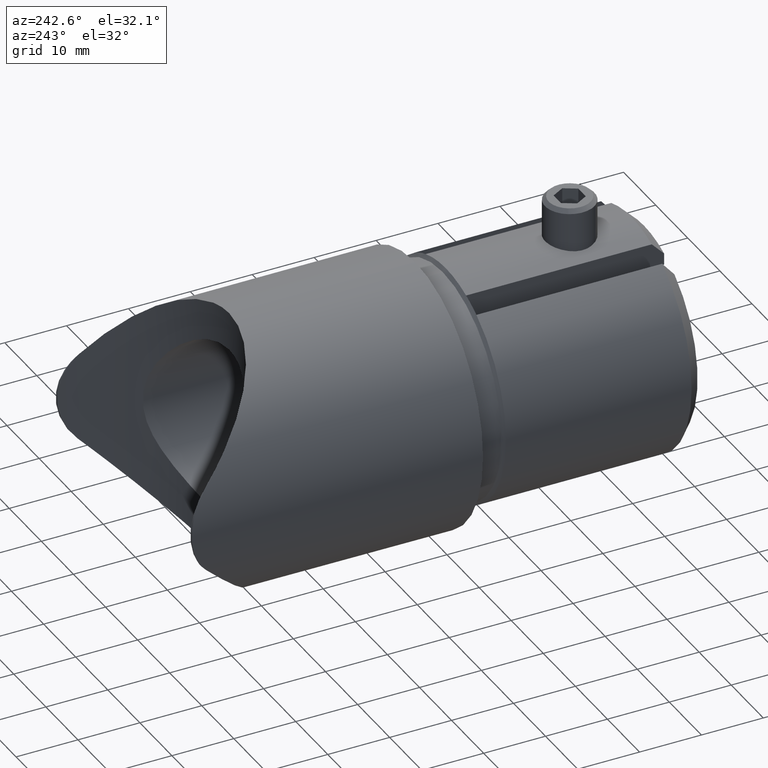
[diagram: clean part render]
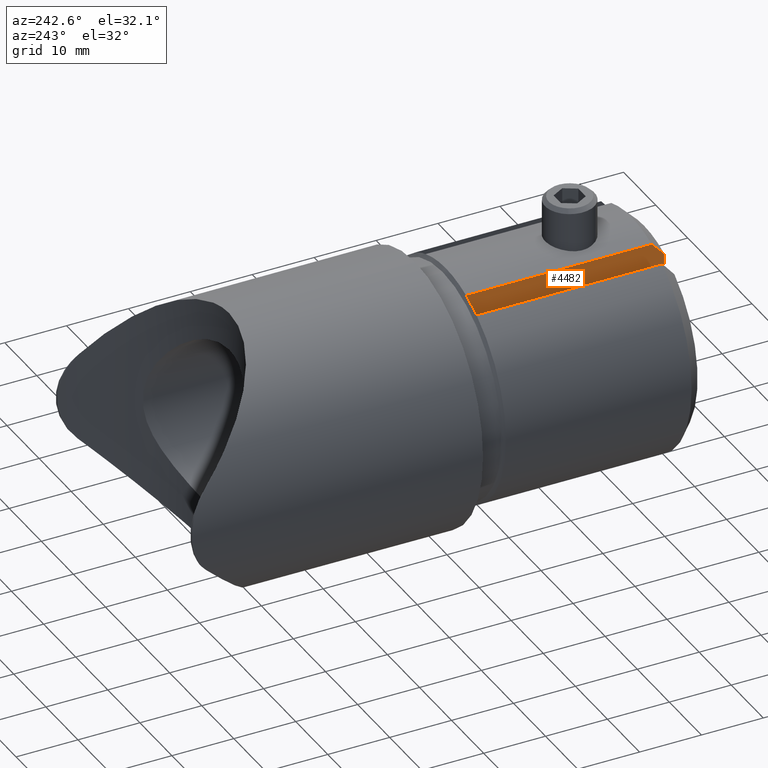
[diagram: same view with one face highlighted and labeled with its STEP entity id]
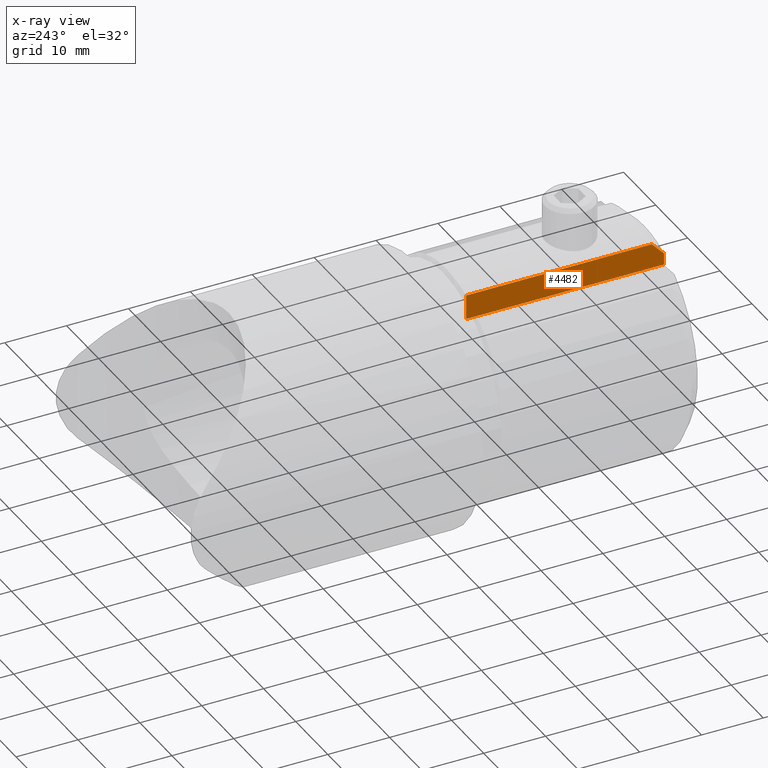
[diagram: x-ray of the same camera — body ghosted, the highlighted face saturated]
A machine part, auxiliary view. The second image highlights one B-rep face of the part: STEP entity #4482.
The next image is the same camera in x-ray: the body ghosted, the highlighted face saturated — about 0% of this face is hidden behind the body in this view.
In plain terms, the highlighted planar face has unit normal (1, -0, 0).
Its self-contained STEP definition (entity closure, byte-faithful):
#296 = CARTESIAN_POINT ( 'NONE',  ( -6.299999999999998900, -4.999999999999992000, -21.19999999999999900 ) ) ;
#389 = ORIENTED_EDGE ( 'NONE', *, *, #5753, .F. ) ;
#1171 = VERTEX_POINT ( 'NONE', #4144 ) ;
#1446 = VECTOR ( 'NONE', #13049, 1000.000000000000000 ) ;
#2234 = EDGE_CURVE ( 'NONE', #7258, #1171, #7853, .T. ) ;
#2315 = FACE_OUTER_BOUND ( 'NONE', #11234, .T. ) ;
#2327 = DIRECTION ( 'NONE',  ( -0.0000000000000000000, -0.0000000000000000000, 1.000000000000000000 ) ) ;
#2405 = VERTEX_POINT ( 'NONE', #8102 ) ;
#2535 = PLANE ( 'NONE',  #5209 ) ;
#2886 = B_SPLINE_CURVE_WITH_KNOTS ( 'NONE', 3,
 ( #3089, #5307, #10576, #4179 ),
 .UNSPECIFIED., .F., .F.,
 ( 4, 4 ),
 ( 0.07284254844285362200, 0.07575993842085485000 ),
 .UNSPECIFIED. ) ;
#3089 = CARTESIAN_POINT ( 'NONE',  ( -6.299999999999999800, -37.00000000000000000, 15.46609194334498500 ) ) ;
#3101 = LINE ( 'NONE', #8416, #12829 ) ;
#3249 = EDGE_CURVE ( 'NONE', #12965, #2405, #12727, .T. ) ;
#3345 = CARTESIAN_POINT ( 'NONE',  ( -6.299999999999999800, -37.00000000000000000, 17.60681686165900900 ) ) ;
#3842 = VECTOR ( 'NONE', #2327, 1000.000000000000000 ) ;
#4118 = CARTESIAN_POINT ( 'NONE',  ( -6.299999999999998900, -4.999999999999992000, 13.61286156544611200 ) ) ;
#4144 = CARTESIAN_POINT ( 'NONE',  ( -6.299999999999999800, -37.00000000000000000, 15.46609194334498500 ) ) ;
#4146 = ORIENTED_EDGE ( 'NONE', *, *, #13895, .T. ) ;
#4179 = CARTESIAN_POINT ( 'NONE',  ( -6.299999999999999800, -35.00000000000000000, 17.60681686165902700 ) ) ;
#4482 = ADVANCED_FACE ( 'NONE', ( #2315 ), #2535, .F. ) ;
#4676 = CARTESIAN_POINT ( 'NONE',  ( -6.299999999999999800, -37.00000000000000000, -21.19999999999999900 ) ) ;
#4737 = DIRECTION ( 'NONE',  ( 2.710505431213760500E-017, 1.000000000000000000, 0.0000000000000000000 ) ) ;
#4864 = VECTOR ( 'NONE', #5612, 1000.000000000000000 ) ;
#5127 = ORIENTED_EDGE ( 'NONE', *, *, #3249, .F. ) ;
#5209 = AXIS2_PLACEMENT_3D ( 'NONE', #296, #10094, #4737 ) ;
#5213 = DIRECTION ( 'NONE',  ( 0.0000000000000000000, 1.000000000000000000, 0.0000000000000000000 ) ) ;
#5307 = CARTESIAN_POINT ( 'NONE',  ( -6.299999999999999800, -36.33650805472084500, 16.18251827307010900 ) ) ;
#5612 = DIRECTION ( 'NONE',  ( -0.0000000000000000000, -0.0000000000000000000, 1.000000000000000000 ) ) ;
#5753 = EDGE_CURVE ( 'NONE', #2405, #12665, #12333, .T. ) ;
#5971 = ORIENTED_EDGE ( 'NONE', *, *, #12461, .F. ) ;
#6456 = ORIENTED_EDGE ( 'NONE', *, *, #2234, .T. ) ;
#6547 = CARTESIAN_POINT ( 'NONE',  ( -6.299999999999999800, -37.00000000000000000, 13.61286156544611400 ) ) ;
#7258 = VERTEX_POINT ( 'NONE', #6547 ) ;
#7853 = LINE ( 'NONE', #4676, #4864 ) ;
#8102 = CARTESIAN_POINT ( 'NONE',  ( -6.299999999999998900, -4.999999999999992000, 17.60681686165902000 ) ) ;
#8416 = CARTESIAN_POINT ( 'NONE',  ( -6.299999999999998900, 9.000000000000001800, 13.61286156544611200 ) ) ;
#10094 = DIRECTION ( 'NONE',  ( 1.000000000000000000, -2.710505431213760500E-017, 0.0000000000000000000 ) ) ;
#10576 = CARTESIAN_POINT ( 'NONE',  ( -6.299999999999999800, -35.66948056028462600, 16.89576917054657900 ) ) ;
#11234 = EDGE_LOOP ( 'NONE', ( #5127, #5971, #6456, #4146, #389 ) ) ;
#12333 = LINE ( 'NONE', #3345, #1446 ) ;
#12461 = EDGE_CURVE ( 'NONE', #7258, #12965, #3101, .T. ) ;
#12665 = VERTEX_POINT ( 'NONE', #13695 ) ;
#12727 = LINE ( 'NONE', #13053, #3842 ) ;
#12829 = VECTOR ( 'NONE', #5213, 1000.000000000000000 ) ;
#12965 = VERTEX_POINT ( 'NONE', #4118 ) ;
#13049 = DIRECTION ( 'NONE',  ( 0.0000000000000000000, -1.000000000000000000, 0.0000000000000000000 ) ) ;
#13053 = CARTESIAN_POINT ( 'NONE',  ( -6.299999999999998900, -4.999999999999992000, -21.19999999999999900 ) ) ;
#13695 = CARTESIAN_POINT ( 'NONE',  ( -6.299999999999999800, -35.00000000000000000, 17.60681686165902700 ) ) ;
#13895 = EDGE_CURVE ( 'NONE', #1171, #12665, #2886, .T. ) ;